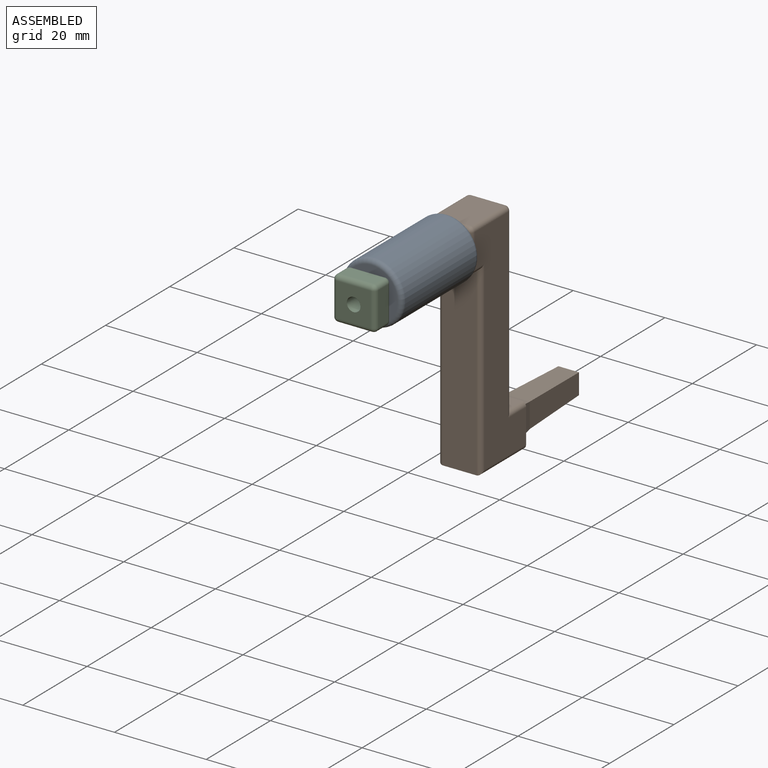
[diagram: assembled view]
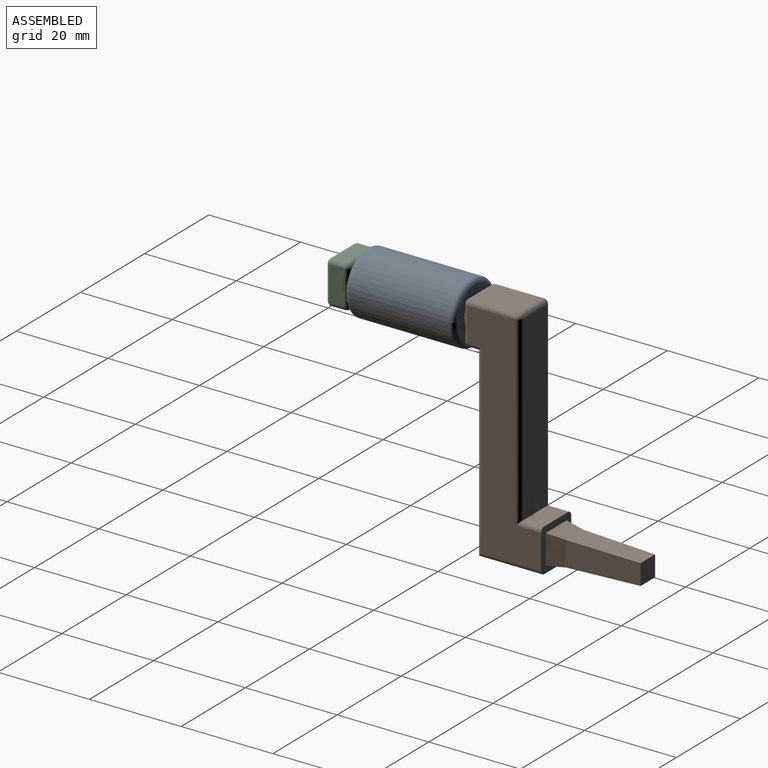
[diagram: assembled view, second angle]
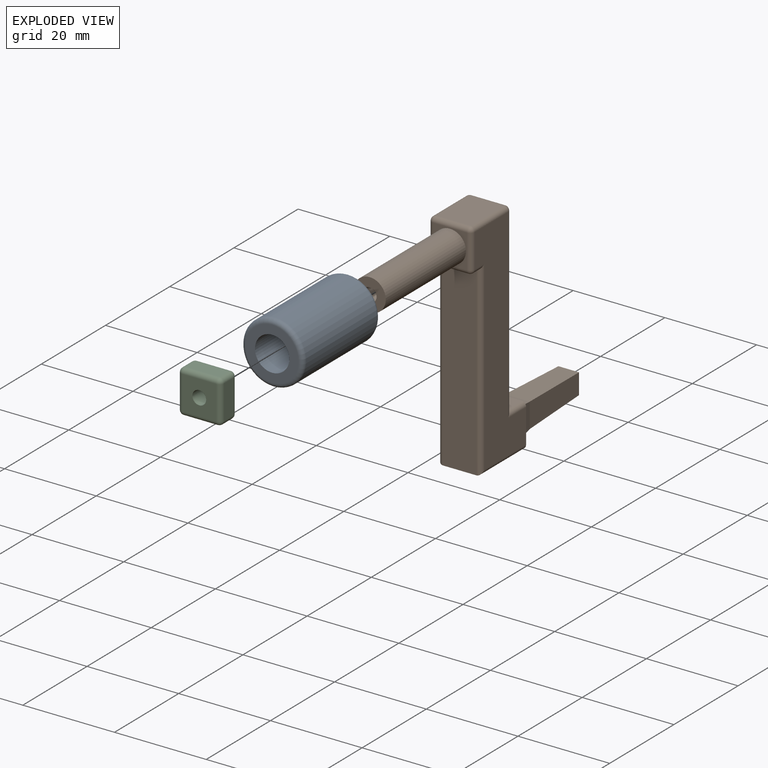
[diagram: exploded view]
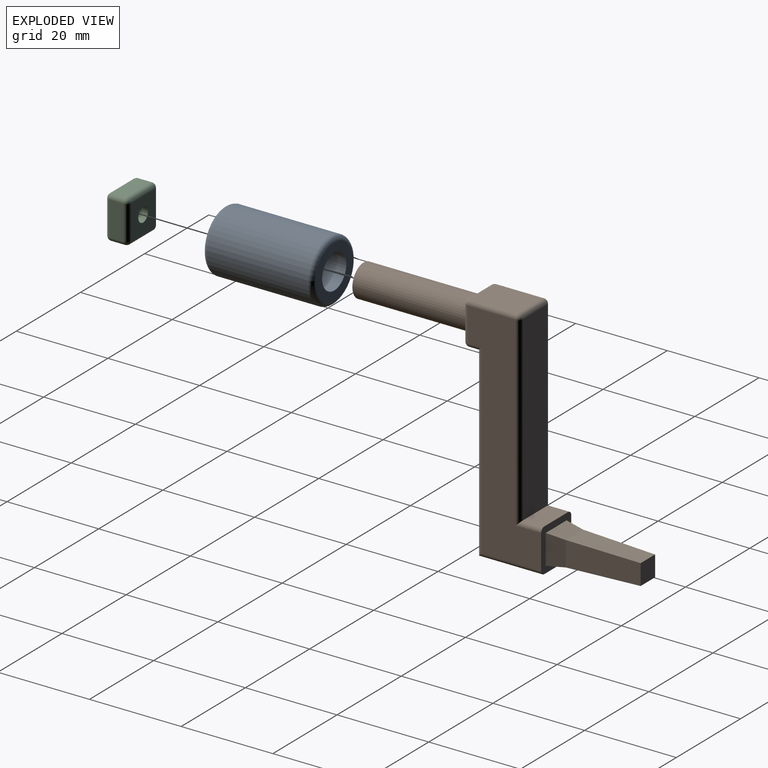
[diagram: exploded view, second angle]
ASSEMBLY  parts=3 mates=2
PART A: 6 faces, bbox 14.6x24x14.6 mm
  f0: cylinder r=3.75mm len=24mm, axis (0,1,0), area 565.5mm2, adj f2,f3
  f1: cylinder r=6.75mm len=22mm, axis (0,1,0), area 933.1mm2, adj f4,f5
  f2: plane 11.5x11.5mm, normal (0,-1,0), area 59.7mm2, adj f0,f5
  f3: plane 11.5x11.5mm, normal (0,1,0), area 59.7mm2, adj f0,f4
  f4: torus R=5.75mm, axis (0,-1,0), area 63mm2, adj f1,f3
  f5: torus R=5.75mm, axis (0,-1,0), area 63mm2, adj f1,f2
PART B: 46 faces, bbox 9.4x62x50 mm
  f0: plane 4.5x4.5mm, normal (0,1,0), area 20.2mm2, adj f1,f2,f44,f45
  f1: plane 16x5.4mm, normal (0,0.03,-1), area 79.2mm2, adj f0,f43,f44,f45
  f2: plane 16x5.4mm, normal (0,0.03,1), area 79.2mm2, adj f0,f42,f44,f45
  f3: plane 6.5x4mm, normal (0.99,0.14,0), area 24mm2, adj f7,f42,f43,f44
  f4: plane 6.5x4mm, normal (-0.99,0.14,0), area 24mm2, adj f7,f42,f43,f45
  f5: plane 7.4x4.6mm, normal (0,0,1), area 34mm2, adj f7,f11,f17,f24
  f6: plane 40.6x7.4mm, normal (0,-1,0), area 300.4mm2, adj f10,f13,f22,f29
  f7: plane 9.4x9.4mm, normal (0,1,0), area 45.3mm2, adj f3,f4,f5,f8,f9,f10,f17,f20
  f8: plane 48x16mm, normal (-1,0,0), area 418.8mm2, adj f7,f17,f18,f19,f20,f21,f22,f23
  f9: plane 48x16mm, normal (1,0,0), area 418.8mm2, adj f7,f24,f25,f26,f27,f28,f29,f30
  f10: plane 14x7.4mm, normal (0,0,-1), area 103.6mm2, adj f6,f7,f20,f27
  f11: plane 39.6x7.4mm, normal (0,1,0), area 293mm2, adj f5,f18,f25,f38
  f12: plane 10.4x7.4mm, normal (0,0,1), area 77mm2, adj f19,f26,f32,f38
  f13: plane 7.4x2mm, normal (0,0,-1), area 14.8mm2, adj f6,f23,f30,f35
  f14: plane 7.4x7.4mm, normal (0,-1,0), area 16.3mm2, adj f15,f21,f28,f32,f35
  f15: cylinder r=3.5mm len=25mm, axis (0,1,0), area 549.8mm2, adj f14,f16
  f16: plane 7x7mm, normal (0,-1,0), area 31.4mm2, adj f15,f40
  f17: cylinder r=1mm len=5.6mm, axis (0,1,0), area 7.8mm2, adj f5,f7,f8,f18
  f18: cylinder r=1mm len=40.6mm, axis (0,0,-1), area 62.8mm2, adj f8,f11,f17,f39
  f19: cylinder r=1mm len=10.4mm, axis (0,1,0), area 16.3mm2, adj f8,f12,f33,f39
  f20: cylinder r=1mm len=14mm, axis (0,1,0), area 21.4mm2, adj f7,f8,f10,f22
  f21: cylinder r=1mm len=7.4mm, axis (0,0,1), area 11.6mm2, adj f8,f14,f33,f36
  f22: cylinder r=1mm len=41.6mm, axis (0,0,1), area 63.8mm2, adj f6,f8,f20,f23
  f23: cylinder r=1mm len=3mm, axis (0,-1,0), area 3.7mm2, adj f8,f13,f22,f36
  f24: cylinder r=1mm len=5.6mm, axis (0,1,0), area 7.8mm2, adj f5,f7,f9,f25
  f25: cylinder r=1mm len=40.6mm, axis (0,0,-1), area 62.8mm2, adj f9,f11,f24,f37
  f26: cylinder r=1mm len=10.4mm, axis (0,1,0), area 16.3mm2, adj f9,f12,f31,f37
  f27: cylinder r=1mm len=14mm, axis (0,1,0), area 21.4mm2, adj f7,f9,f10,f29
  f28: cylinder r=1mm len=7.4mm, axis (0,0,1), area 11.6mm2, adj f9,f14,f31,f34
  f29: cylinder r=1mm len=41.6mm, axis (0,0,1), area 63.8mm2, adj f6,f9,f27,f30
  f30: cylinder r=1mm len=3mm, axis (0,-1,0), area 3.7mm2, adj f9,f13,f29,f34
  f31: sphere r=1mm, area 1.6mm2, adj f26,f28,f32
  f32: cylinder r=1mm len=7.4mm, axis (1,0,0), area 11.6mm2, adj f12,f14,f31,f33
  f33: sphere r=1mm, area 1.6mm2, adj f19,f21,f32
  f34: sphere r=1mm, area 1.6mm2, adj f28,f30,f35
  f35: cylinder r=1mm len=7.4mm, axis (-1,0,0), area 11.6mm2, adj f13,f14,f34,f36
  f36: sphere r=1mm, area 1.6mm2, adj f21,f23,f35
  f37: sphere r=1mm, area 1.6mm2, adj f25,f26,f38
  f38: cylinder r=1mm len=7.4mm, axis (1,0,0), area 11.6mm2, adj f11,f12,f37,f39
  f39: sphere r=1mm, area 1.6mm2, adj f18,f19,f38
  f40: cylinder r=1.5mm len=7mm, axis (0,-1,0), area 66mm2, adj f16,f41
  f41: plane 3x3mm, normal (0,-1,0), area 7.1mm2, adj f40
  f42: plane 6.5x4mm, normal (0,0.14,0.99), area 24mm2, adj f2,f3,f4,f7
  f43: plane 6.5x4mm, normal (0,0.14,-0.99), area 24mm2, adj f1,f3,f4,f7
  f44: plane 16x5.4mm, normal (1,0.03,0), area 79.2mm2, adj f0,f1,f2,f3
  f45: plane 16x5.4mm, normal (-1,0.03,0), area 79.2mm2, adj f0,f1,f2,f4
PART C: 27 faces, bbox 9.4x5x9.4 mm
  f0: plane 7.4x3mm, normal (-1,0,0), area 22.2mm2, adj f15,f20,f23,f26
  f1: plane 7.4x3mm, normal (0,0,-1), area 22.2mm2, adj f12,f21,f22,f26
  f2: plane 7.4x3mm, normal (1,0,0), area 22.2mm2, adj f7,f11,f12,f13
  f3: plane 7.4x3mm, normal (0,0,1), area 22.2mm2, adj f7,f10,f14,f15
  f4: plane 7.4x7.4mm, normal (0,-1,0), area 47.7mm2, adj f6,f10,f11,f20,f21
  f5: plane 7.4x7.4mm, normal (0,1,0), area 47.7mm2, adj f6,f13,f14,f22,f23
  f6: cylinder r=1.5mm len=5mm, axis (0,-1,0), area 47.1mm2, adj f4,f5
  f7: cylinder r=1mm len=3mm, axis (0,-1,0), area 4.7mm2, adj f2,f3,f8,f9
  f8: sphere r=1mm, area 1.6mm2, adj f7,f10,f11
  f9: sphere r=1mm, area 1.6mm2, adj f7,f13,f14
  f10: cylinder r=1mm len=7.4mm, axis (1,0,0), area 11.6mm2, adj f3,f4,f8,f16
  f11: cylinder r=1mm len=7.4mm, axis (0,0,-1), area 11.6mm2, adj f2,f4,f8,f17
  f12: cylinder r=1mm len=3mm, axis (0,1,0), area 4.7mm2, adj f1,f2,f17,f18
  f13: cylinder r=1mm len=7.4mm, axis (0,0,1), area 11.6mm2, adj f2,f5,f9,f18
  f14: cylinder r=1mm len=7.4mm, axis (-1,0,0), area 11.6mm2, adj f3,f5,f9,f19
  f15: cylinder r=1mm len=3mm, axis (0,1,0), area 4.7mm2, adj f0,f3,f16,f19
  f16: sphere r=1mm, area 1.6mm2, adj f10,f15,f20
  f17: sphere r=1mm, area 1.6mm2, adj f11,f12,f21
  f18: sphere r=1mm, area 1.6mm2, adj f12,f13,f22
  f19: sphere r=1mm, area 1.6mm2, adj f14,f15,f23
  f20: cylinder r=1mm len=7.4mm, axis (0,0,1), area 11.6mm2, adj f0,f4,f16,f24
  f21: cylinder r=1mm len=7.4mm, axis (-1,0,0), area 11.6mm2, adj f1,f4,f17,f24
  f22: cylinder r=1mm len=7.4mm, axis (1,0,0), area 11.6mm2, adj f1,f5,f18,f25
  f23: cylinder r=1mm len=7.4mm, axis (0,0,-1), area 11.6mm2, adj f0,f5,f19,f25
  f24: sphere r=1mm, area 1.6mm2, adj f20,f21,f26
  f25: sphere r=1mm, area 1.6mm2, adj f22,f23,f26
  f26: cylinder r=1mm len=3mm, axis (0,-1,0), area 4.7mm2, adj f0,f1,f24,f25
PLACE A t=(-11.41,0.3,37.38)mm
PLACE B t=(-14.11,33.8,-5.92)mm
PLACE C t=(-16.11,-24.2,32.68)mm
MATE fastened C.f6 <-> B.f15  axis (0,1,0) through (-11.41,-24.2,37.38)mm
MATE revolute A.f0 <-> B.f15  axis (0,1,0) through (-11.41,-11.7,37.38)mm
